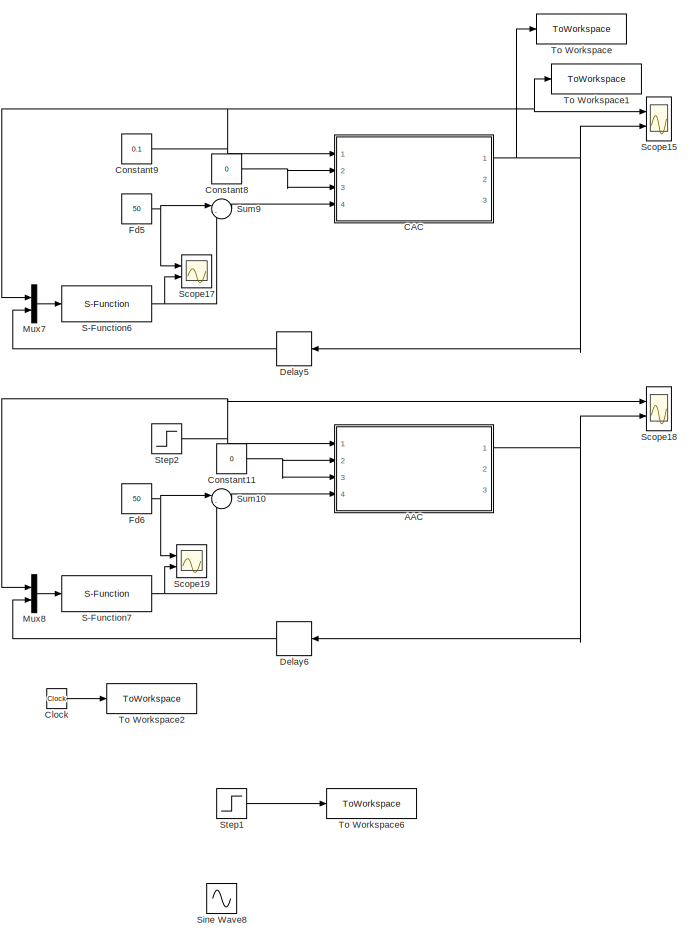
[diagram: root canvas - part 1/3, left side, full height]
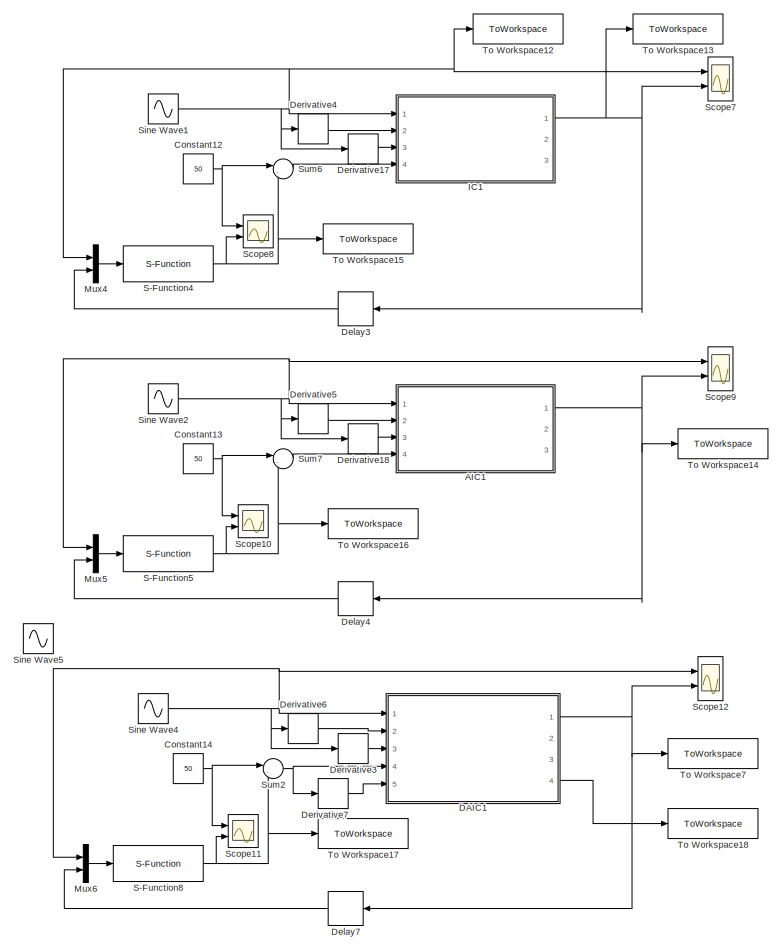
[diagram: root canvas - part 2/3, right side, full height]
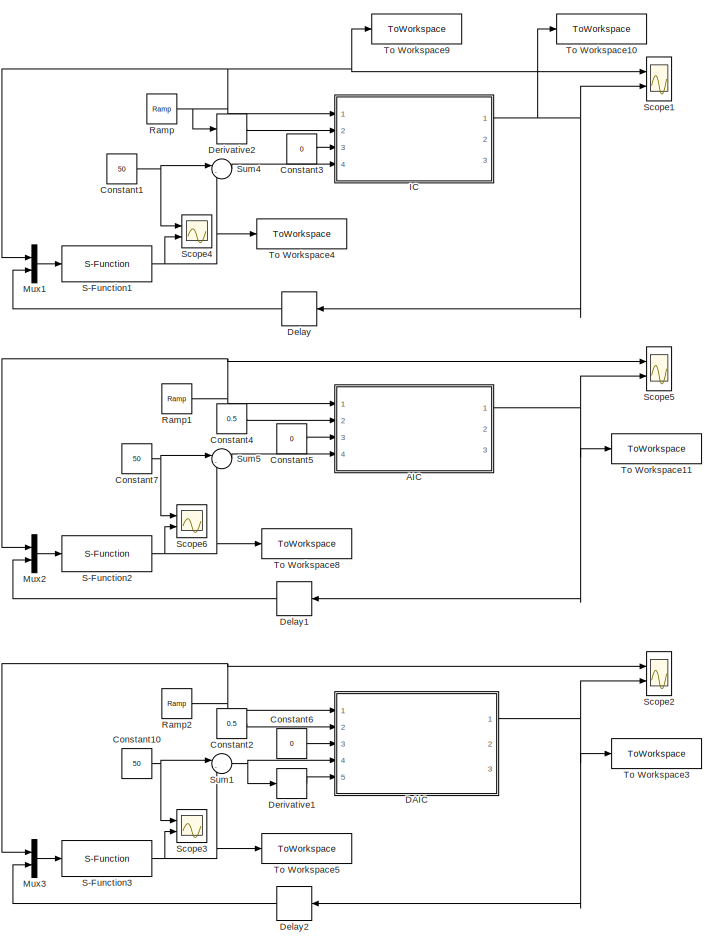
[diagram: root canvas - part 3/3, center side, full height]
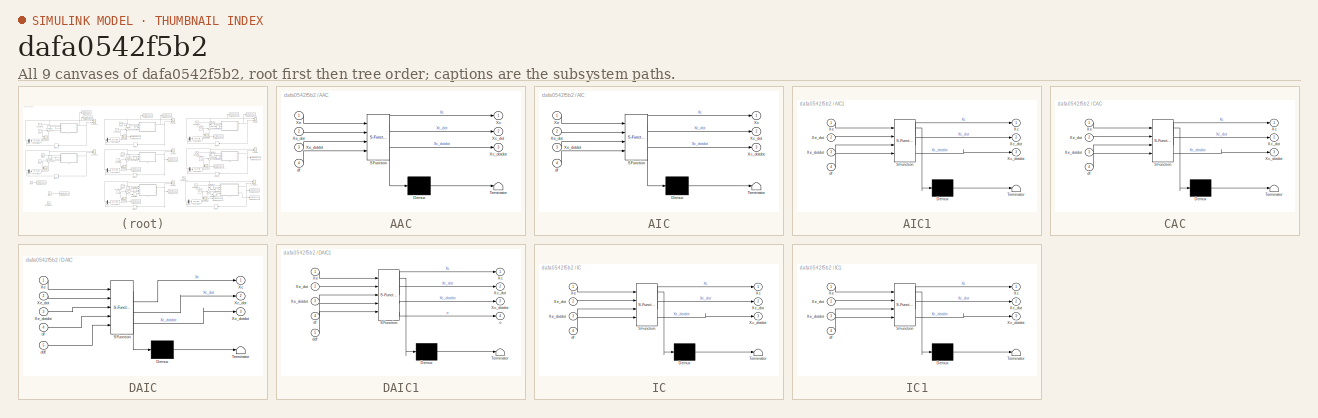
[diagram: thumbnail index - all 9 canvases of the model, root first then tree order]
MODEL slx_dafa0542f5b2
KIND model
CONFIG AbsTol = auto
CONFIG EnableMultiTasking = off
CONFIG FixedStep = 0.00005
CONFIG MaxStep = auto
CONFIG MinStep = auto
CONFIG RelTol = 1e-3
CONFIG SampleTimeConstraint = Unconstrained
CONFIG Solver = FixedStepAuto
CONFIG SolverName = FixedStepAuto
CONFIG StartTime = 0.0
CONFIG StopTime = 0.5
BLOCK [SubSystem] AAC
  Commented = on
  ErrorFcn = Stateflow.Translate.translate
  PermitHierarchicalResolution = ExplicitOnly
  Ports = [4, 3]
  RequestExecContextInheritance = off
  SFBlockType = MATLAB Function
  TreatAsAtomicUnit = on
BLOCK [Demux] AAC/ Demux 
  Outputs = 1
  Ports = [1, 1]
BLOCK [S-Function] AAC/ SFunction 
  EnableBusSupport = on
  FunctionName = sf_sfun
  PortCounts = [4 4]
  Ports = [4, 4]
  SFcnIsStateOwnerBlock = off
  SFunctionDeploymentMode = off
  Tag = Stateflow S-Function 7
BLOCK [Terminator] AAC/ Terminator 
BLOCK [Outport] AAC/Xc
BLOCK [Outport] AAC/Xc_dot
  Port = 2
BLOCK [Outport] AAC/Xc_dotdot
  Port = 3
BLOCK [Inport] AAC/Xe
BLOCK [Inport] AAC/Xe_dot
  Port = 2
BLOCK [Inport] AAC/Xe_dotdot
  Port = 3
BLOCK [Inport] AAC/df
  Port = 4
BLOCK [SubSystem] AIC
  Commented = on
  ErrorFcn = Stateflow.Translate.translate
  PermitHierarchicalResolution = ExplicitOnly
  Ports = [4, 3]
  RequestExecContextInheritance = off
  SFBlockType = MATLAB Function
  TreatAsAtomicUnit = on
BLOCK [Demux] AIC/ Demux 
  Outputs = 1
  Ports = [1, 1]
BLOCK [S-Function] AIC/ SFunction 
  EnableBusSupport = on
  FunctionName = sf_sfun
  PortCounts = [4 4]
  Ports = [4, 4]
  SFcnIsStateOwnerBlock = off
  SFunctionDeploymentMode = off
  Tag = Stateflow S-Function 1
BLOCK [Terminator] AIC/ Terminator 
BLOCK [Outport] AIC/Xc
BLOCK [Outport] AIC/Xc_dot
  Port = 2
BLOCK [Outport] AIC/Xc_dotdot
  Port = 3
BLOCK [Inport] AIC/Xe
BLOCK [Inport] AIC/Xe_dot
  Port = 2
BLOCK [Inport] AIC/Xe_dotdot
  Port = 3
BLOCK [Inport] AIC/df
  Port = 4
BLOCK [SubSystem] AIC1
  ErrorFcn = Stateflow.Translate.translate
  PermitHierarchicalResolution = ExplicitOnly
  Ports = [4, 3]
  RequestExecContextInheritance = off
  SFBlockType = MATLAB Function
  TreatAsAtomicUnit = on
BLOCK [Demux] AIC1/ Demux 
  Outputs = 1
  Ports = [1, 1]
BLOCK [S-Function] AIC1/ SFunction 
  EnableBusSupport = on
  FunctionName = sf_sfun
  PortCounts = [4 4]
  Ports = [4, 4]
  SFcnIsStateOwnerBlock = off
  SFunctionDeploymentMode = off
  Tag = Stateflow S-Function 4
BLOCK [Terminator] AIC1/ Terminator 
BLOCK [Outport] AIC1/Xc
BLOCK [Outport] AIC1/Xc_dot
  Port = 2
BLOCK [Outport] AIC1/Xc_dotdot
  Port = 3
BLOCK [Inport] AIC1/Xe
BLOCK [Inport] AIC1/Xe_dot
  Port = 2
BLOCK [Inport] AIC1/Xe_dotdot
  Port = 3
BLOCK [Inport] AIC1/df
  Port = 4
BLOCK [SubSystem] CAC
  Commented = on
  ErrorFcn = Stateflow.Translate.translate
  PermitHierarchicalResolution = ExplicitOnly
  Ports = [4, 3]
  RequestExecContextInheritance = off
  SFBlockType = MATLAB Function
  TreatAsAtomicUnit = on
BLOCK [Demux] CAC/ Demux 
  Outputs = 1
  Ports = [1, 1]
BLOCK [S-Function] CAC/ SFunction 
  EnableBusSupport = on
  FunctionName = sf_sfun
  PortCounts = [4 4]
  Ports = [4, 4]
  SFcnIsStateOwnerBlock = off
  SFunctionDeploymentMode = off
  Tag = Stateflow S-Function 6
BLOCK [Terminator] CAC/ Terminator 
BLOCK [Outport] CAC/Xc
BLOCK [Outport] CAC/Xc_dot
  Port = 2
BLOCK [Outport] CAC/Xc_dotdot
  Port = 3
BLOCK [Inport] CAC/Xe
BLOCK [Inport] CAC/Xe_dot
  Port = 2
BLOCK [Inport] CAC/Xe_dotdot
  Port = 3
BLOCK [Inport] CAC/df
  Port = 4
BLOCK [Clock] Clock
BLOCK [Constant] Constant1
  Commented = on
  Value = 50
BLOCK [Constant] Constant10
  Commented = on
  Value = 50
BLOCK [Constant] Constant11
  Commented = on
  Value = 0
BLOCK [Constant] Constant12
  Value = 50
BLOCK [Constant] Constant13
  Value = 50
BLOCK [Constant] Constant14
  Value = 50
BLOCK [Constant] Constant2
  Commented = on
  Value = 0.5
BLOCK [Constant] Constant3
  Commented = on
  Value = 0
BLOCK [Constant] Constant4
  Commented = on
  Value = 0.5
BLOCK [Constant] Constant5
  Commented = on
  Value = 0
BLOCK [Constant] Constant6
  Commented = on
  Value = 0
BLOCK [Constant] Constant7
  Commented = on
  Value = 50
BLOCK [Constant] Constant8
  Commented = on
  Value = 0
BLOCK [Constant] Constant9
  Commented = on
  Value = 0.1
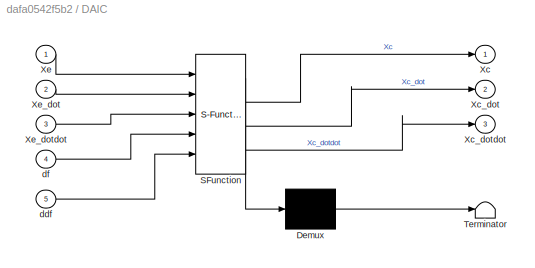
BLOCK [SubSystem] DAIC
  Commented = on
  ErrorFcn = Stateflow.Translate.translate
  PermitHierarchicalResolution = ExplicitOnly
  Ports = [5, 3]
  RequestExecContextInheritance = off
  SFBlockType = MATLAB Function
  TreatAsAtomicUnit = on
BLOCK [Demux] DAIC/ Demux 
  Outputs = 1
  Ports = [1, 1]
BLOCK [S-Function] DAIC/ SFunction 
  EnableBusSupport = on
  FunctionName = sf_sfun
  PortCounts = [5 4]
  Ports = [5, 4]
  SFcnIsStateOwnerBlock = off
  SFunctionDeploymentMode = off
  Tag = Stateflow S-Function 3
BLOCK [Terminator] DAIC/ Terminator 
BLOCK [Outport] DAIC/Xc
BLOCK [Outport] DAIC/Xc_dot
  Port = 2
BLOCK [Outport] DAIC/Xc_dotdot
  Port = 3
BLOCK [Inport] DAIC/Xe
BLOCK [Inport] DAIC/Xe_dot
  Port = 2
BLOCK [Inport] DAIC/Xe_dotdot
  Port = 3
BLOCK [Inport] DAIC/ddf
  Port = 5
BLOCK [Inport] DAIC/df
  Port = 4
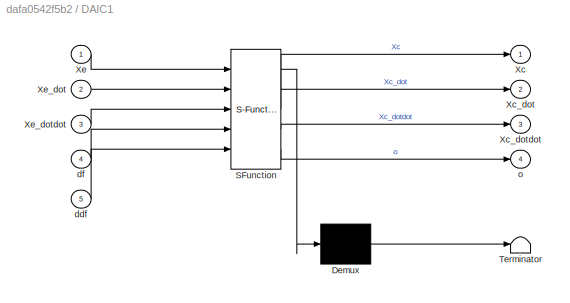
BLOCK [SubSystem] DAIC1
  ErrorFcn = Stateflow.Translate.translate
  PermitHierarchicalResolution = ExplicitOnly
  Ports = [5, 4]
  RequestExecContextInheritance = off
  SFBlockType = MATLAB Function
  TreatAsAtomicUnit = on
BLOCK [Demux] DAIC1/ Demux 
  Outputs = 1
  Ports = [1, 1]
BLOCK [S-Function] DAIC1/ SFunction 
  EnableBusSupport = on
  FunctionName = sf_sfun
  PortCounts = [5 5]
  Ports = [5, 5]
  SFcnIsStateOwnerBlock = off
  SFunctionDeploymentMode = off
  Tag = Stateflow S-Function 8
BLOCK [Terminator] DAIC1/ Terminator 
BLOCK [Outport] DAIC1/Xc
BLOCK [Outport] DAIC1/Xc_dot
  Port = 2
BLOCK [Outport] DAIC1/Xc_dotdot
  Port = 3
BLOCK [Inport] DAIC1/Xe
BLOCK [Inport] DAIC1/Xe_dot
  Port = 2
BLOCK [Inport] DAIC1/Xe_dotdot
  Port = 3
BLOCK [Inport] DAIC1/ddf
  Port = 5
BLOCK [Inport] DAIC1/df
  Port = 4
BLOCK [Outport] DAIC1/o
  Port = 4
BLOCK [Delay] Delay
  Commented = on
  DelayLength = 1
  InitialCondition = -0.002
  InputPortMap = u0
  NameLocation = top
  Ports = [1, 1]
BLOCK [Delay] Delay1
  Commented = on
  DelayLength = 1
  InitialCondition = -0.002
  InputPortMap = u0
  NameLocation = top
  Ports = [1, 1]
BLOCK [Delay] Delay2
  Commented = on
  DelayLength = 1
  InitialCondition = -0.002
  InputPortMap = u0
  NameLocation = top
  Ports = [1, 1]
BLOCK [Delay] Delay3
  DelayLength = 1
  InitialCondition = 0.098
  InputPortMap = u0
  NameLocation = top
  Ports = [1, 1]
BLOCK [Delay] Delay4
  DelayLength = 1
  InitialCondition = 0.098
  InputPortMap = u0
  NameLocation = top
  Ports = [1, 1]
BLOCK [Delay] Delay5
  Commented = on
  DelayLength = 1
  InitialCondition = 0.098
  InputPortMap = u0
  NameLocation = top
  Ports = [1, 1]
BLOCK [Delay] Delay6
  Commented = through
  DelayLength = 1
  InitialCondition = 0.098
  InputPortMap = u0
  NameLocation = top
  Ports = [1, 1]
BLOCK [Delay] Delay7
  DelayLength = 1
  InitialCondition = 0.098
  InputPortMap = u0
  NameLocation = top
  Ports = [1, 1]
BLOCK [Derivative] Derivative1
  Commented = on
BLOCK [Derivative] Derivative17
BLOCK [Derivative] Derivative18
BLOCK [Derivative] Derivative2
  Commented = on
BLOCK [Derivative] Derivative3
BLOCK [Derivative] Derivative4
BLOCK [Derivative] Derivative5
BLOCK [Derivative] Derivative6
BLOCK [Derivative] Derivative7
BLOCK [Constant] Fd5
  Commented = on
  Value = 50
BLOCK [Constant] Fd6
  Commented = on
  Value = 50
BLOCK [SubSystem] IC
  Commented = on
  ErrorFcn = Stateflow.Translate.translate
  PermitHierarchicalResolution = ExplicitOnly
  Ports = [4, 3]
  RequestExecContextInheritance = off
  SFBlockType = MATLAB Function
  TreatAsAtomicUnit = on
BLOCK [Demux] IC/ Demux 
  Outputs = 1
  Ports = [1, 1]
BLOCK [S-Function] IC/ SFunction 
  EnableBusSupport = on
  FunctionName = sf_sfun
  PortCounts = [4 4]
  Ports = [4, 4]
  SFcnIsStateOwnerBlock = off
  SFunctionDeploymentMode = off
  Tag = Stateflow S-Function 2
BLOCK [Terminator] IC/ Terminator 
BLOCK [Outport] IC/Xc
BLOCK [Outport] IC/Xc_dot
  Port = 2
BLOCK [Outport] IC/Xc_dotdot
  Port = 3
BLOCK [Inport] IC/Xe
BLOCK [Inport] IC/Xe_dot
  Port = 2
BLOCK [Inport] IC/Xe_dotdot
  Port = 3
BLOCK [Inport] IC/df
  Port = 4
BLOCK [SubSystem] IC1
  ErrorFcn = Stateflow.Translate.translate
  PermitHierarchicalResolution = ExplicitOnly
  Ports = [4, 3]
  RequestExecContextInheritance = off
  SFBlockType = MATLAB Function
  TreatAsAtomicUnit = on
BLOCK [Demux] IC1/ Demux 
  Outputs = 1
  Ports = [1, 1]
BLOCK [S-Function] IC1/ SFunction 
  EnableBusSupport = on
  FunctionName = sf_sfun
  PortCounts = [4 4]
  Ports = [4, 4]
  SFcnIsStateOwnerBlock = off
  SFunctionDeploymentMode = off
  Tag = Stateflow S-Function 5
BLOCK [Terminator] IC1/ Terminator 
BLOCK [Outport] IC1/Xc
BLOCK [Outport] IC1/Xc_dot
  Port = 2
BLOCK [Outport] IC1/Xc_dotdot
  Port = 3
BLOCK [Inport] IC1/Xe
BLOCK [Inport] IC1/Xe_dot
  Port = 2
BLOCK [Inport] IC1/Xe_dotdot
  Port = 3
BLOCK [Inport] IC1/df
  Port = 4
BLOCK [Mux] Mux1
  Commented = on
  DisplayOption = bar
  Inputs = 2
  Ports = [2, 1]
BLOCK [Mux] Mux2
  Commented = on
  DisplayOption = bar
  Inputs = 2
  Ports = [2, 1]
BLOCK [Mux] Mux3
  Commented = on
  DisplayOption = bar
  Inputs = 2
  Ports = [2, 1]
BLOCK [Mux] Mux4
  DisplayOption = bar
  Inputs = 2
  Ports = [2, 1]
BLOCK [Mux] Mux5
  DisplayOption = bar
  Inputs = 2
  Ports = [2, 1]
BLOCK [Mux] Mux6
  DisplayOption = bar
  Inputs = 2
  Ports = [2, 1]
BLOCK [Mux] Mux7
  Commented = on
  DisplayOption = bar
  Inputs = 2
  Ports = [2, 1]
BLOCK [Mux] Mux8
  Commented = on
  DisplayOption = bar
  Inputs = 2
  Ports = [2, 1]
BLOCK [Reference] Ramp  REF=simulink/Sources/Ramp
  Commented = on
  Ports = [0, 1]
  SourceBlock = simulink/Sources/Ramp
  SourceProductBaseCode = SL
  SourceType = Ramp
BLOCK [Reference] Ramp1  REF=simulink/Sources/Ramp
  Commented = on
  Ports = [0, 1]
  SourceBlock = simulink/Sources/Ramp
  SourceProductBaseCode = SL
  SourceType = Ramp
BLOCK [Reference] Ramp2  REF=simulink/Sources/Ramp
  Commented = on
  Ports = [0, 1]
  SourceBlock = simulink/Sources/Ramp
  SourceProductBaseCode = SL
  SourceType = Ramp
BLOCK [S-Function] S-Function1
  Commented = on
  EnableBusSupport = off
  FunctionName = contact_force
  Ports = [1, 1]
  SFcnIsStateOwnerBlock = off
  SFunctionDeploymentMode = off
BLOCK [S-Function] S-Function2
  Commented = on
  EnableBusSupport = off
  FunctionName = contact_force
  Ports = [1, 1]
  SFcnIsStateOwnerBlock = off
  SFunctionDeploymentMode = off
BLOCK [S-Function] S-Function3
  Commented = on
  EnableBusSupport = off
  FunctionName = contact_force
  Ports = [1, 1]
  SFcnIsStateOwnerBlock = off
  SFunctionDeploymentMode = off
BLOCK [S-Function] S-Function4
  EnableBusSupport = off
  FunctionName = contact_force
  Ports = [1, 1]
  SFcnIsStateOwnerBlock = off
  SFunctionDeploymentMode = off
BLOCK [S-Function] S-Function5
  EnableBusSupport = off
  FunctionName = contact_force
  Ports = [1, 1]
  SFcnIsStateOwnerBlock = off
  SFunctionDeploymentMode = off
BLOCK [S-Function] S-Function6
  Commented = on
  EnableBusSupport = off
  FunctionName = contact_force
  Ports = [1, 1]
  SFcnIsStateOwnerBlock = off
  SFunctionDeploymentMode = off
BLOCK [S-Function] S-Function7
  Commented = on
  EnableBusSupport = off
  FunctionName = contact_force
  Ports = [1, 1]
  SFcnIsStateOwnerBlock = off
  SFunctionDeploymentMode = off
BLOCK [S-Function] S-Function8
  EnableBusSupport = off
  FunctionName = contact_force
  Ports = [1, 1]
  SFcnIsStateOwnerBlock = off
  SFunctionDeploymentMode = off
BLOCK [Scope] Scope1
  Commented = on
  Floating = off
  NumInputPorts = 2
  Ports = [2]
  ScopeSpecificationString = Simulink.scopes.TimeScopeBlockCfg('CurrentConfiguration', extmgr.ConfigurationSet(extmgr.Configuration('Core','General UI',true),extmgr.Configuration('Core','Source UI',true),extmgr.Configuration('Sources','WiredSimulink',true,'DataLoggingVariableName','ScopeData4'),extmgr.Configuration('Visuals','Time Domain',true,'SerializedDisplays',{struct('MinYLimReal','-0.03421','MaxYLimReal','0.28719','YLab...<+1405ch>
BLOCK [Scope] Scope10
  Floating = off
  NumInputPorts = 2
  Ports = [2]
  ScopeSpecificationString = Simulink.scopes.TimeScopeBlockCfg('CurrentConfiguration', extmgr.ConfigurationSet(extmgr.Configuration('Core','General UI',true),extmgr.Configuration('Core','Source UI',true),extmgr.Configuration('Sources','WiredSimulink',true,'DataLoggingVariableName','ScopeData10'),extmgr.Configuration('Visuals','Time Domain',true,'SerializedDisplays',{struct('MinYLimReal','-69.02087','MaxYLimReal','36.35521','Y...<+1493ch>
BLOCK [Scope] Scope11
  Floating = off
  NumInputPorts = 2
  Ports = [2]
  ScopeSpecificationString = Simulink.scopes.TimeScopeBlockCfg('CurrentConfiguration', extmgr.ConfigurationSet(extmgr.Configuration('Core','General UI',true),extmgr.Configuration('Core','Source UI',true),extmgr.Configuration('Sources','WiredSimulink',true,'DataLoggingVariableName','ScopeData14'),extmgr.Configuration('Visuals','Time Domain',true,'SerializedDisplays',{struct('MinYLimReal','-90.56588','MaxYLimReal','40.1266','YL...<+1466ch>
BLOCK [Scope] Scope12
  Floating = off
  NumInputPorts = 2
  Ports = [2]
  ScopeSpecificationString = Simulink.scopes.TimeScopeBlockCfg('CurrentConfiguration', extmgr.ConfigurationSet(extmgr.Configuration('Core','General UI',true),extmgr.Configuration('Core','Source UI',true),extmgr.Configuration('Sources','WiredSimulink',true,'DataLoggingVariableName','ScopeData15'),extmgr.Configuration('Visuals','Time Domain',true,'SerializedDisplays',{struct('MinYLimReal','-0.02606','MaxYLimReal','0.22512','YLa...<+1459ch>
BLOCK [Scope] Scope15
  Commented = on
  Floating = off
  NumInputPorts = 2
  Ports = [2]
  ScopeSpecificationString = Simulink.scopes.TimeScopeBlockCfg('CurrentConfiguration', extmgr.ConfigurationSet(extmgr.Configuration('Core','General UI',true),extmgr.Configuration('Core','Source UI',true),extmgr.Configuration('Sources','WiredSimulink',true,'DataLoggingVariableName','ScopeData1'),extmgr.Configuration('Visuals','Time Domain',true,'SerializedDisplays',{struct('MinYLimReal','0.08836','MaxYLimReal','0.10129','YLabe...<+1407ch>
BLOCK [Scope] Scope17
  Commented = on
  Floating = off
  NumInputPorts = 2
  Ports = [2]
  ScopeSpecificationString = Simulink.scopes.TimeScopeBlockCfg('CurrentConfiguration', extmgr.ConfigurationSet(extmgr.Configuration('Core','General UI',true),extmgr.Configuration('Core','Source UI',true),extmgr.Configuration('Sources','WiredSimulink',true,'DataLoggingVariableName','ScopeData2'),extmgr.Configuration('Visuals','Time Domain',true,'SerializedDisplays',{struct('MinYLimReal','4.78222','MaxYLimReal','56.95998','YLab...<+1456ch>
BLOCK [Scope] Scope18
  Commented = on
  Floating = off
  NumInputPorts = 2
  Ports = [2]
  ScopeSpecificationString = Simulink.scopes.TimeScopeBlockCfg('CurrentConfiguration', extmgr.ConfigurationSet(extmgr.Configuration('Core','General UI',true),extmgr.Configuration('Core','Source UI',true),extmgr.Configuration('Sources','WiredSimulink',true,'DataLoggingVariableName','ScopeData3'),extmgr.Configuration('Visuals','Time Domain',true,'SerializedDisplays',{struct('MinYLimReal','0.08543','MaxYLimReal','0.10162','YLabe...<+1437ch>
BLOCK [Scope] Scope19
  Commented = on
  Floating = off
  NumInputPorts = 2
  Ports = [2]
  ScopeSpecificationString = Simulink.scopes.TimeScopeBlockCfg('CurrentConfiguration', extmgr.ConfigurationSet(extmgr.Configuration('Core','General UI',true),extmgr.Configuration('Core','Source UI',true),extmgr.Configuration('Sources','WiredSimulink',true),extmgr.Configuration('Visuals','Time Domain',true,'SerializedDisplays',{struct('MinYLimReal','1.48179','MaxYLimReal','61.66391','YLabelReal','','MinYLimMag','1.48179','MaxY...<+1414ch>
BLOCK [Scope] Scope2
  Commented = on
  Floating = off
  NumInputPorts = 2
  Ports = [2]
  ScopeSpecificationString = Simulink.scopes.TimeScopeBlockCfg('CurrentConfiguration', extmgr.ConfigurationSet(extmgr.Configuration('Core','General UI',true),extmgr.Configuration('Core','Source UI',true),extmgr.Configuration('Sources','WiredSimulink',true,'DataLoggingVariableName','ScopeData8'),extmgr.Configuration('Visuals','Time Domain',true,'SerializedDisplays',{struct('MinYLimReal','-0.70776','MaxYLimReal','5.63364','YLab...<+1427ch>
BLOCK [Scope] Scope3
  Commented = on
  Floating = off
  NumInputPorts = 2
  Ports = [2]
  ScopeSpecificationString = Simulink.scopes.TimeScopeBlockCfg('CurrentConfiguration', extmgr.ConfigurationSet(extmgr.Configuration('Core','General UI',true),extmgr.Configuration('Core','Source UI',true),extmgr.Configuration('Sources','WiredSimulink',true,'DataLoggingVariableName','ScopeData9'),extmgr.Configuration('Visuals','Time Domain',true,'SerializedDisplays',{struct('MinYLimReal','2.66857','MaxYLimReal','59.03404','YLab...<+1463ch>
BLOCK [Scope] Scope4
  Commented = on
  Floating = off
  NumInputPorts = 2
  Ports = [2]
  ScopeSpecificationString = Simulink.scopes.TimeScopeBlockCfg('CurrentConfiguration', extmgr.ConfigurationSet(extmgr.Configuration('Core','General UI',true),extmgr.Configuration('Core','Source UI',true),extmgr.Configuration('Sources','WiredSimulink',true,'DataLoggingVariableName','ScopeData5'),extmgr.Configuration('Visuals','Time Domain',true,'SerializedDisplays',{struct('MinYLimReal','3.09657','MaxYLimReal','72.13083','YLab...<+1487ch>
BLOCK [Scope] Scope5
  Commented = on
  Floating = off
  NumInputPorts = 2
  Ports = [2]
  ScopeSpecificationString = Simulink.scopes.TimeScopeBlockCfg('CurrentConfiguration', extmgr.ConfigurationSet(extmgr.Configuration('Core','General UI',true),extmgr.Configuration('Core','Source UI',true),extmgr.Configuration('Sources','WiredSimulink',true,'DataLoggingVariableName','ScopeData6'),extmgr.Configuration('Visuals','Time Domain',true,'SerializedDisplays',{struct('MinYLimReal','-0.70776','MaxYLimReal','5.63364','YLab...<+1427ch>
BLOCK [Scope] Scope6
  Commented = on
  Floating = off
  NumInputPorts = 2
  Ports = [2]
  ScopeSpecificationString = Simulink.scopes.TimeScopeBlockCfg('CurrentConfiguration', extmgr.ConfigurationSet(extmgr.Configuration('Core','General UI',true),extmgr.Configuration('Core','Source UI',true),extmgr.Configuration('Sources','WiredSimulink',true,'DataLoggingVariableName','ScopeData7'),extmgr.Configuration('Visuals','Time Domain',true,'SerializedDisplays',{struct('MinYLimReal','2.61528','MaxYLimReal','59.53163','YLab...<+1462ch>
BLOCK [Scope] Scope7
  Floating = off
  NumInputPorts = 2
  Ports = [2]
  ScopeSpecificationString = Simulink.scopes.TimeScopeBlockCfg('CurrentConfiguration', extmgr.ConfigurationSet(extmgr.Configuration('Core','General UI',true),extmgr.Configuration('Core','Source UI',true),extmgr.Configuration('Sources','WiredSimulink',true,'DataLoggingVariableName','ScopeData11'),extmgr.Configuration('Visuals','Time Domain',true,'SerializedDisplays',{struct('MinYLimReal','-0.0399','MaxYLimReal','0.22666','YLab...<+1434ch>
BLOCK [Scope] Scope8
  Floating = off
  NumInputPorts = 2
  Ports = [2]
  ScopeSpecificationString = Simulink.scopes.TimeScopeBlockCfg('CurrentConfiguration', extmgr.ConfigurationSet(extmgr.Configuration('Core','General UI',true),extmgr.Configuration('Core','Source UI',true),extmgr.Configuration('Sources','WiredSimulink',true,'DataLoggingVariableName','ScopeData12'),extmgr.Configuration('Visuals','Time Domain',true,'SerializedDisplays',{struct('MinYLimReal','2.29775','MaxYLimReal','29.32027','YLa...<+1463ch>
BLOCK [Scope] Scope9
  Floating = off
  NumInputPorts = 2
  Ports = [2]
  ScopeSpecificationString = Simulink.scopes.TimeScopeBlockCfg('CurrentConfiguration', extmgr.ConfigurationSet(extmgr.Configuration('Core','General UI',true),extmgr.Configuration('Core','Source UI',true),extmgr.Configuration('Sources','WiredSimulink',true,'DataLoggingVariableName','ScopeData13'),extmgr.Configuration('Visuals','Time Domain',true,'SerializedDisplays',{struct('MinYLimReal','-0.02606','MaxYLimReal','0.22512','YLa...<+1456ch>
BLOCK [Sin] Sine Wave1
  Amplitude = 0.1
  Bias = 0.1
  Frequency = 4*pi
  Phase = 0.01
  Ports = [0, 1]
  SampleTime = 0
BLOCK [Sin] Sine Wave2
  Amplitude = 0.1
  Bias = 0.1
  Frequency = 4*pi
  Phase = 0.01
  Ports = [0, 1]
  SampleTime = 0
BLOCK [Sin] Sine Wave4
  Amplitude = 0.1
  Bias = 0.1
  Frequency = 4*pi
  Phase = 0.01
  Ports = [0, 1]
  SampleTime = 0
BLOCK [Sin] Sine Wave5
  Amplitude = 10
  Bias = 10
  Frequency = pi
  Phase = 0.01
  Ports = [0, 1]
  SampleTime = 0
BLOCK [Sin] Sine Wave8
  Amplitude = 10
  Bias = 10
  Frequency = pi
  Phase = 0.01
  Ports = [0, 1]
  SampleTime = 0
BLOCK [Step] Step1
  After = 50
  SampleTime = 0
  Time = 0
BLOCK [Step] Step2
  After = 0.1
  Commented = on
  SampleTime = 0
  Time = 0
BLOCK [Sum] Sum1
  Commented = on
  Inputs = |-+
  Ports = [2, 1]
BLOCK [Sum] Sum10
  Commented = on
  Inputs = |-+
  Ports = [2, 1]
BLOCK [Sum] Sum2
  Inputs = |-+
  Ports = [2, 1]
BLOCK [Sum] Sum4
  Commented = on
  Inputs = |-+
  Ports = [2, 1]
BLOCK [Sum] Sum5
  Commented = on
  Inputs = |-+
  Ports = [2, 1]
BLOCK [Sum] Sum6
  Inputs = |-+
  Ports = [2, 1]
BLOCK [Sum] Sum7
  Inputs = |-+
  Ports = [2, 1]
BLOCK [Sum] Sum9
  Commented = on
  Inputs = |-+
  Ports = [2, 1]
BLOCK [ToWorkspace] To Workspace
  Commented = on
  FixptAsFi = on
  MaxDataPoints = inf
  Ports = [1]
  SampleTime = -1
  SaveFormat = Timeseries
  VariableName = Xc_1
BLOCK [ToWorkspace] To Workspace1
  Commented = on
  FixptAsFi = on
  MaxDataPoints = inf
  Ports = [1]
  SampleTime = -1
  SaveFormat = Timeseries
  VariableName = Xe_1
BLOCK [ToWorkspace] To Workspace10
  Commented = on
  FixptAsFi = on
  MaxDataPoints = inf
  Ports = [1]
  SampleTime = -1
  SaveFormat = Timeseries
  VariableName = Xc1
BLOCK [ToWorkspace] To Workspace11
  Commented = on
  FixptAsFi = on
  MaxDataPoints = inf
  Ports = [1]
  SampleTime = -1
  SaveFormat = Timeseries
  VariableName = Xc2
BLOCK [ToWorkspace] To Workspace12
  FixptAsFi = on
  MaxDataPoints = inf
  Ports = [1]
  SampleTime = -1
  SaveFormat = Timeseries
  VariableName = Xe1
BLOCK [ToWorkspace] To Workspace13
  FixptAsFi = on
  MaxDataPoints = inf
  Ports = [1]
  SampleTime = -1
  SaveFormat = Timeseries
  VariableName = Xc4
BLOCK [ToWorkspace] To Workspace14
  FixptAsFi = on
  MaxDataPoints = inf
  Ports = [1]
  SampleTime = -1
  SaveFormat = Timeseries
  VariableName = Xc5
BLOCK [ToWorkspace] To Workspace15
  FixptAsFi = on
  MaxDataPoints = inf
  Ports = [1]
  SampleTime = -1
  SaveFormat = Timeseries
  VariableName = Fe4
BLOCK [ToWorkspace] To Workspace16
  FixptAsFi = on
  MaxDataPoints = inf
  Ports = [1]
  SampleTime = -1
  SaveFormat = Timeseries
  VariableName = Fe5
BLOCK [ToWorkspace] To Workspace17
  FixptAsFi = on
  MaxDataPoints = inf
  Ports = [1]
  SampleTime = -1
  SaveFormat = Timeseries
  VariableName = Fe6
BLOCK [ToWorkspace] To Workspace18
  FixptAsFi = on
  MaxDataPoints = inf
  Ports = [1]
  SampleTime = -1
  SaveFormat = Timeseries
  VariableName = o
BLOCK [ToWorkspace] To Workspace2
  FixptAsFi = on
  MaxDataPoints = inf
  Ports = [1]
  SampleTime = -1
  SaveFormat = Timeseries
  VariableName = t
BLOCK [ToWorkspace] To Workspace3
  Commented = on
  FixptAsFi = on
  MaxDataPoints = inf
  Ports = [1]
  SampleTime = -1
  SaveFormat = Timeseries
  VariableName = Xc3
BLOCK [ToWorkspace] To Workspace4
  Commented = on
  FixptAsFi = on
  MaxDataPoints = inf
  Ports = [1]
  SampleTime = -1
  SaveFormat = Timeseries
  VariableName = Fe1
BLOCK [ToWorkspace] To Workspace5
  Commented = on
  FixptAsFi = on
  MaxDataPoints = inf
  Ports = [1]
  SampleTime = -1
  SaveFormat = Timeseries
  VariableName = Fe3
BLOCK [ToWorkspace] To Workspace6
  FixptAsFi = on
  MaxDataPoints = inf
  Ports = [1]
  SampleTime = -1
  SaveFormat = Timeseries
  VariableName = Fd
BLOCK [ToWorkspace] To Workspace7
  FixptAsFi = on
  MaxDataPoints = inf
  Ports = [1]
  SampleTime = -1
  SaveFormat = Timeseries
  VariableName = Xc6
BLOCK [ToWorkspace] To Workspace8
  Commented = on
  FixptAsFi = on
  MaxDataPoints = inf
  Ports = [1]
  SampleTime = -1
  SaveFormat = Timeseries
  VariableName = Fe2
BLOCK [ToWorkspace] To Workspace9
  Commented = on
  FixptAsFi = on
  MaxDataPoints = inf
  Ports = [1]
  SampleTime = -1
  SaveFormat = Timeseries
  VariableName = Xe
NET AAC:1 -> Delay6:1, Scope18:2
NET AIC1:1 -> Delay4:1, Scope9:2, To Workspace14:1
NET AIC:1 -> Delay1:1, Scope5:2, To Workspace11:1
NET CAC:1 -> Delay5:1, Scope15:2, To Workspace:1
LINE Clock:1 -> To Workspace2:1
NET Constant10:1 -> Scope3:1, Sum1:1
NET Constant11:1 -> AAC:2, AAC:3
NET Constant12:1 -> Scope8:1, Sum6:1
NET Constant13:1 -> Scope10:1, Sum7:1
NET Constant14:1 -> Scope11:1, Sum2:1
NET Constant1:1 -> Scope4:1, Sum4:1
LINE Constant2:1 -> DAIC:2
LINE Constant3:1 -> IC:3
LINE Constant4:1 -> AIC:2
LINE Constant5:1 -> AIC:3
LINE Constant6:1 -> DAIC:3
NET Constant7:1 -> Scope6:1, Sum5:1
NET Constant8:1 -> CAC:2, CAC:3
NET Constant9:1 -> CAC:1, Mux7:1, Scope15:1, To Workspace1:1
NET DAIC1:1 -> Delay7:1, Scope12:2, To Workspace7:1
LINE DAIC1:4 -> To Workspace18:1
NET DAIC:1 -> Delay2:1, Scope2:2, To Workspace3:1
LINE Delay1:1 -> Mux2:2
LINE Delay2:1 -> Mux3:2
LINE Delay3:1 -> Mux4:2
LINE Delay4:1 -> Mux5:2
LINE Delay5:1 -> Mux7:2
LINE Delay6:1 -> Mux8:2
LINE Delay7:1 -> Mux6:2
LINE Delay:1 -> Mux1:2
LINE Derivative17:1 -> IC1:3
LINE Derivative18:1 -> AIC1:3
LINE Derivative1:1 -> DAIC:5
LINE Derivative2:1 -> IC:2
LINE Derivative3:1 -> DAIC1:3
LINE Derivative4:1 -> IC1:2
LINE Derivative5:1 -> AIC1:2
LINE Derivative6:1 -> DAIC1:2
LINE Derivative7:1 -> DAIC1:5
NET Fd5:1 -> Scope17:1, Sum9:1
NET Fd6:1 -> Scope19:1, Sum10:1
NET IC1:1 -> Delay3:1, Scope7:2, To Workspace13:1
NET IC:1 -> Delay:1, Scope1:2, To Workspace10:1
LINE Mux1:1 -> S-Function1:1
LINE Mux2:1 -> S-Function2:1
LINE Mux3:1 -> S-Function3:1
LINE Mux4:1 -> S-Function4:1
LINE Mux5:1 -> S-Function5:1
LINE Mux6:1 -> S-Function8:1
LINE Mux7:1 -> S-Function6:1
LINE Mux8:1 -> S-Function7:1
NET Ramp1:1 -> AIC:1, Mux2:1, Scope5:1
NET Ramp2:1 -> DAIC:1, Mux3:1, Scope2:1
NET Ramp:1 -> Derivative2:1, IC:1, Mux1:1, Scope1:1, To Workspace9:1
NET S-Function1:1 -> Scope4:2, Sum4:2, To Workspace4:1
NET S-Function2:1 -> Scope6:2, Sum5:2, To Workspace8:1
NET S-Function3:1 -> Scope3:2, Sum1:2, To Workspace5:1
NET S-Function4:1 -> Scope8:2, Sum6:2, To Workspace15:1
NET S-Function5:1 -> Scope10:2, Sum7:2, To Workspace16:1
NET S-Function6:1 -> Scope17:2, Sum9:2
NET S-Function7:1 -> Scope19:2, Sum10:2
NET S-Function8:1 -> Scope11:2, Sum2:2, To Workspace17:1
NET Sine Wave1:1 -> Derivative17:1, Derivative4:1, IC1:1, Mux4:1, Scope7:1, To Workspace12:1
NET Sine Wave2:1 -> AIC1:1, Derivative18:1, Derivative5:1, Mux5:1, Scope9:1
NET Sine Wave4:1 -> DAIC1:1, Derivative3:1, Derivative6:1, Mux6:1, Scope12:1
LINE Step1:1 -> To Workspace6:1
NET Step2:1 -> AAC:1, Mux8:1, Scope18:1
LINE Sum10:1 -> AAC:4
NET Sum1:1 -> DAIC:4, Derivative1:1
NET Sum2:1 -> DAIC1:4, Derivative7:1
LINE Sum4:1 -> IC:4
LINE Sum5:1 -> AIC:4
LINE Sum6:1 -> IC1:4
LINE Sum7:1 -> AIC1:4
LINE Sum9:1 -> CAC:4
note: NET lines group one-source signal fan-out (src -> all destinations, sorted); 1:1 wires keep LINE
CHART AIC states=1 transitions=1
  STATE_LABEL 'eML_blk_kernel()'
  STATE_LABEL 'SCRIPT:\nfunction [Xc,Xc_dot,Xc_dotdot]  = fcnlmp(Xe,Xe_dot,Xe_dotdot,df)  \n\tm =1;b = 50;k=0;T = 0.0005;a=0.01; % 参数初始化  \n\tpersistent Xc_pre Xc_dot_pre df_pre fi_pre;% 持久变量 https://ww2.mathworks.cn/help/matlab/ref/persistent.html  \n\tif isempty(Xc_pre)   \n\t   Xc_pre = -0.002;  \n\tend  \n\tif isempty(Xc_dot_pre)   \n\t   Xc_dot_pre = 0.1;  \n    end  \n    if isempty(df_pre)   \n\t   df_pre = 51;  \n    end  \n...<+678ch>'
CHART IC states=1 transitions=1
  STATE_LABEL 'eML_blk_kernel()'
  STATE_LABEL 'SCRIPT:\nfunction [Xc,Xc_dot,Xc_dotdot]  = fcnlmp(Xe,Xe_dot,Xe_dotdot,df)  \n\tm =1;b = 50;k=0;T = 0.00005; % 参数初始化  \n\tpersistent Xc_pre Xc_dot_pre;% 持久变量 https://ww2.mathworks.cn/help/matlab/ref/persistent.html  \n\tif isempty(Xc_pre)   \n\t   Xc_pre = -0.002;  \n\tend  \n\tif isempty(Xc_dot_pre)   \n\t   Xc_dot_pre = 0;  \n\tend  \n\tXc_dotdot_pre = Xe_dotdot + 1/m*(df + b*(Xe_dot - Xc_dot_pre) + k*(Xe - Xc_pre)...<+379ch>'
CHART DAIC states=1 transitions=1
  STATE_LABEL 'eML_blk_kernel()'
  STATE_LABEL 'SCRIPT:\nfunction [Xc,Xc_dot,Xc_dotdot]  = fcnlmp(Xe,Xe_dot,Xe_dotdot,df,ddf)  \n\tm =1;b = 50;k=0;T = 0.0005;a=2;p=0.001;U=100;e=2.7183; % 参数初始化  \n\tpersistent Xc_pre Xc_dot_pre df_pre fi_pre;% 持久变量 https://ww2.mathworks.cn/help/matlab/ref/persistent.html  \n\tif isempty(Xc_pre)   \n\t   Xc_pre = -0.002;  \n\tend  \n\tif isempty(Xc_dot_pre)   \n\t   Xc_dot_pre = 0.1;  \n    end  \n    if isempty(df_pre)   \n\t   d...<+744ch>'
CHART AIC1 states=1 transitions=1
  STATE_LABEL 'eML_blk_kernel()'
  STATE_LABEL 'SCRIPT:\nfunction [Xc,Xc_dot,Xc_dotdot]  = fcnlmp(Xe,Xe_dot,Xe_dotdot,df)  \n\tm =1;b = 50;k=0;T = 0.0005;a=0.01; % 参数初始化  \n\tpersistent Xc_pre Xc_dot_pre df_pre fi_pre;% 持久变量 https://ww2.mathworks.cn/help/matlab/ref/persistent.html  \n\tif isempty(Xc_pre)   \n\t   Xc_pre = 0.098;  \n\tend  \n\tif isempty(Xc_dot_pre)   \n\t   Xc_dot_pre = 0.1;  \n    end  \n    if isempty(df_pre)   \n\t   df_pre = 51;  \n    end  \n ...<+662ch>'
CHART IC1 states=1 transitions=1
  STATE_LABEL 'eML_blk_kernel()'
  STATE_LABEL 'SCRIPT:\nfunction [Xc,Xc_dot,Xc_dotdot]  = fcnlmp(Xe,Xe_dot,Xe_dotdot,df)  \n\tm =1;b = 50;k=0;T = 0.00005; % 参数初始化  \n\tpersistent Xc_pre Xc_dot_pre;% 持久变量 https://ww2.mathworks.cn/help/matlab/ref/persistent.html  \n\tif isempty(Xc_pre)   \n\t   Xc_pre = 0.098;  \n\tend  \n\tif isempty(Xc_dot_pre)   \n\t   Xc_dot_pre = 0;  \n\tend  \n\tXc_dotdot_pre = Xe_dotdot + 1/m*(df + b*(Xe_dot - Xc_dot_pre) + k*(Xe - Xc_pre))...<+378ch>'
CHART CAC states=1 transitions=1
  STATE_LABEL 'eML_blk_kernel()'
  STATE_LABEL 'SCRIPT:\nfunction [Xc,Xc_dot,Xc_dotdot]  = fcnlmp(Xe,Xe_dot,Xe_dotdot,df)  \n\tm =1;b = 60;k=0;T = 0.00005; % 参数初始化  \n\tpersistent Xc_pre Xc_dot_pre;% 持久变量 https://ww2.mathworks.cn/help/matlab/ref/persistent.html  \n\tif isempty(Xc_pre)   \n\t   Xc_pre = 0.098;  \n\tend  \n\tif isempty(Xc_dot_pre)   \n\t   Xc_dot_pre = 0;  \n\tend  \n\tXc_dotdot_pre = Xe_dotdot + 1/m*(df + b*(Xe_dot - Xc_dot_pre) + k*(Xe - Xc_pre))...<+378ch>'
CHART AAC states=1 transitions=1
  STATE_LABEL 'eML_blk_kernel()'
  STATE_LABEL 'SCRIPT:\nfunction [Xc,Xc_dot,Xc_dotdot]  = fcnlmp(Xe,Xe_dot,Xe_dotdot,df)  \n\tm =1;b = 100;k=0;T = 0.005;a=0.01; % 参数初始化  \n\tpersistent Xc_pre Xc_dot_pre df_pre fi_pre;% 持久变量 https://ww2.mathworks.cn/help/matlab/ref/persistent.html  \n\tif isempty(Xc_pre)   \n\t   Xc_pre = 0.098;  \n\tend  \n\tif isempty(Xc_dot_pre)   \n\t   Xc_dot_pre = 0.1;  \n    end  \n    if isempty(df_pre)   \n\t   df_pre = 51;  \n    end  \n ...<+677ch>'
CHART DAIC1 states=1 transitions=1
  STATE_LABEL 'eML_blk_kernel()'
  STATE_LABEL 'SCRIPT:\nfunction [Xc,Xc_dot,Xc_dotdot,o]  = fcnlmp(Xe,Xe_dot,Xe_dotdot,df,ddf)  \n\tm =1;b = 50;k=0;T = 0.0005;a=2;p=0.001;U=100;e=2.7183; % 参数初始化  \n\tpersistent Xc_pre Xc_dot_pre df_pre fi_pre;% 持久变量 https://ww2.mathworks.cn/help/matlab/ref/persistent.html  \n\tif isempty(Xc_pre)   \n\t   Xc_pre = 0.098;  \n\tend  \n\tif isempty(Xc_dot_pre)   \n\t   Xc_dot_pre = 0.1;  \n    end  \n    if isempty(df_pre)   \n\t   ...<+745ch>'
CHART  states=0 transitions=0
CHART  states=0 transitions=0
CHART  states=0 transitions=0
CHART  states=0 transitions=0
CHART  states=0 transitions=0
CHART  states=0 transitions=0
CHART  states=0 transitions=0
CHART  states=0 transitions=0
